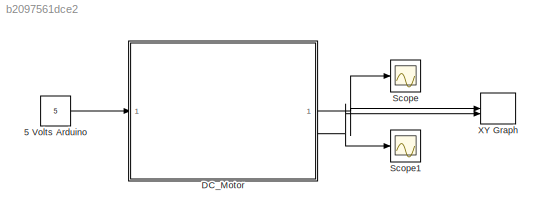
MODEL slx_b2097561dce2
KIND model
CONFIG AbsTol = auto
CONFIG EnableMultiTasking = off
CONFIG FixedStep = auto
CONFIG MaxStep = auto
CONFIG MinStep = auto
CONFIG RelTol = 1e-3
CONFIG SampleTimeConstraint = Unconstrained
CONFIG SolverName = VariableStepAuto
CONFIG StartTime = 0.0
CONFIG StopTime = 10.0
BLOCK [Constant] 5 Volts Arduino
  Value = 5
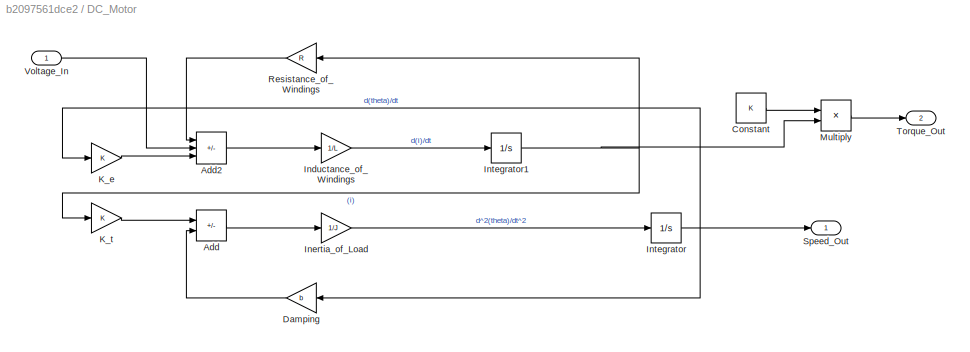
BLOCK [SubSystem] DC_Motor
BLOCK [Sum] DC_Motor/Add
  IconShape = rectangular
  Inputs = +-
BLOCK [Sum] DC_Motor/Add2
  IconShape = rectangular
  Inputs = -+-
BLOCK [Constant] DC_Motor/Constant
  Value = K
BLOCK [Gain] DC_Motor/Damping
  Gain = b
  NameLocation = top
BLOCK [Gain] DC_Motor/Inductance_of_Windings
  Gain = 1/L
BLOCK [Gain] DC_Motor/Inertia_of_Load
  Gain = 1/J
BLOCK [Integrator] DC_Motor/Integrator
BLOCK [Integrator] DC_Motor/Integrator1
BLOCK [Gain] DC_Motor/K_e
  Gain = K
BLOCK [Gain] DC_Motor/K_t
  Gain = K
BLOCK [Product] DC_Motor/Multiply
  Inputs = **
BLOCK [Gain] DC_Motor/Resistance_of_Windings
  Gain = R
  NameLocation = top
BLOCK [Outport] DC_Motor/Speed_Out
BLOCK [Outport] DC_Motor/Torque_Out
  Port = 2
BLOCK [Inport] DC_Motor/Voltage_In
BLOCK [Scope] Scope
  Floating = off
  NumInputPorts = 1
  ScopeSpecificationString = Simulink.scopes.TimeScopeBlockCfg('CurrentConfiguration', extmgr.ConfigurationSet(extmgr.Configuration('Core','General UI',true),extmgr.Configuration('Core','Source UI',true),extmgr.Configuration('Sources','WiredSimulink',true,'DataLogging',true,'DataLoggingVariableName','speed','DataLoggingSaveFormat','StructureWithTime'),extmgr.Configuration('Visuals','Time Domain',true,'SerializedDisplays',{str...<+1463ch>
BLOCK [Scope] Scope1
  Floating = off
  NumInputPorts = 1
  ScopeSpecificationString = Simulink.scopes.TimeScopeBlockCfg('CurrentConfiguration', extmgr.ConfigurationSet(extmgr.Configuration('Core','General UI',true),extmgr.Configuration('Core','Source UI',true),extmgr.Configuration('Sources','WiredSimulink',true,'DataLoggingVariableName','torque','DataLogging',true,'DataLoggingSaveFormat','StructureWithTime'),extmgr.Configuration('Visuals','Time Domain',true,'SerializedDisplays',{st...<+1454ch>
BLOCK [Record] XY Graph
  CompatibilityTag = XY
  FileSettingsInternal = {"entries":[{"content":{"excelSettings":{"content":{},"type":"Streamout.ExcelSettings"}},"type":"Streamout.FileSettingStorage","uuid":""}],"packageUris":["http:\/\/schema.mathworks.com\/mf0\/streamout_blocks\/R2020a"],"version":"1.0"}
  Layout = [1 1]
  SignalsInternal = {"entries":[{"content":{"signals":[{"content":{"blockPath":[],"dimensions":[1],"domain":"","lineColor":"#a2142f","plots":[ 1 ],"port":1,"sid":[""],"signalID":1,"signalName":"DC_Motor:1"},"type":"RecordBlkView.Signal","uuid":""},{"content":{"blockPath":[],"dimensions":[1],"domain":"","lineColor":"#139fff","plots":[ 1 ],"port":2,"sid":[""],"signalID":2,"signalName":"DC_Motor:2"},"type":"RecordBlkVie...<+166ch>
  VisualizationBindings = {"xyplotplugin":{"info":[{"series":[{"bindingParametersList":[{"parameter":"X-Axis","signalID":1,"signalName":"DC_Motor:1"},{"parameter":"Y-Axis","signalID":2,"signalName":"DC_Motor:2"}],"seriesID":0}],"subplotID":1}]}}
LINE 5 Volts Arduino:1 -> DC_Motor:1
LINE DC_Motor/Add2:1 -> DC_Motor/Inductance_of_Windings:1
LINE DC_Motor/Add:1 -> DC_Motor/Inertia_of_Load:1
LINE DC_Motor/Constant:1 -> DC_Motor/Multiply:1
LINE DC_Motor/Damping:1 -> DC_Motor/Add:2
LINE DC_Motor/Inductance_of_Windings:1 -> DC_Motor/Integrator1:1
LINE DC_Motor/Inertia_of_Load:1 -> DC_Motor/Integrator:1
NET DC_Motor/Integrator1:1 -> DC_Motor/K_t:1, DC_Motor/Multiply:2, DC_Motor/Resistance_of_Windings:1
NET DC_Motor/Integrator:1 -> DC_Motor/Damping:1, DC_Motor/K_e:1, DC_Motor/Speed_Out:1
LINE DC_Motor/K_e:1 -> DC_Motor/Add2:3
LINE DC_Motor/K_t:1 -> DC_Motor/Add:1
LINE DC_Motor/Multiply:1 -> DC_Motor/Torque_Out:1
LINE DC_Motor/Resistance_of_Windings:1 -> DC_Motor/Add2:1
LINE DC_Motor/Voltage_In:1 -> DC_Motor/Add2:2
NET DC_Motor:1 -> Scope:1, XY Graph:1
NET DC_Motor:2 -> Scope1:1, XY Graph:2
note: NET lines group one-source signal fan-out (src -> all destinations, sorted); 1:1 wires keep LINE
